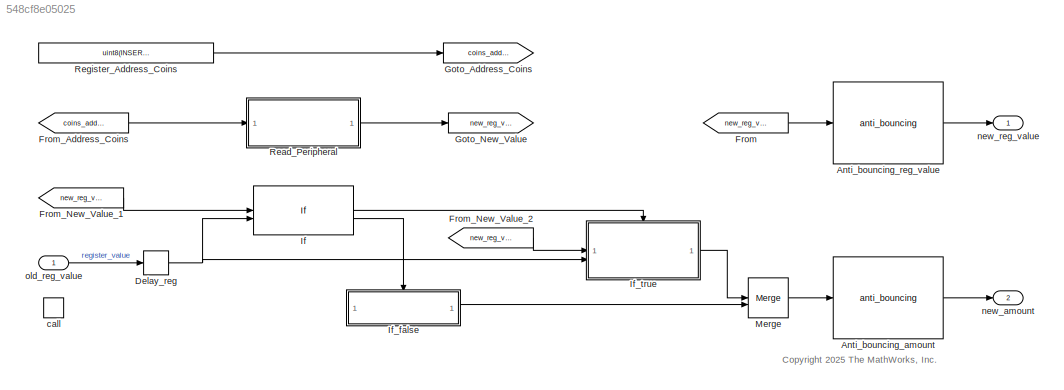
MODEL slx_548cf8e05025
KIND model
CONFIG AbsTol = auto
CONFIG EnableMultiTasking = off
CONFIG FixedStep = auto
CONFIG MaxStep = auto
CONFIG MinStep = auto
CONFIG RelTol = 1e-3
CONFIG SampleTimeConstraint = STIndependent
CONFIG SolverName = FixedStepAuto
CONFIG StartTime = 0.0
CONFIG StopTime = Inf
BLOCK [Reference] Anti_bouncing_amount  REF=Components/anti_bouncing
  SourceBlock = Components/anti_bouncing
  SourceType = SubSystem
BLOCK [Reference] Anti_bouncing_reg_value  REF=Components/anti_bouncing
  SourceBlock = Components/anti_bouncing
  SourceType = SubSystem
BLOCK [Delay] Delay_reg
  DelayLength = 1
  InitialCondition = 0
  InputPortMap = u0
BLOCK [From] From
  GotoTag = new_reg_value
BLOCK [From] From_Address_Coins
  GotoTag = coins_address
BLOCK [From] From_New_Value_1
  GotoTag = new_reg_value
  NameLocation = top
BLOCK [From] From_New_Value_2
  GotoTag = new_reg_value
  NameLocation = top
BLOCK [Goto] Goto_Address_Coins
  GotoTag = coins_address
BLOCK [Goto] Goto_New_Value
  GotoTag = new_reg_value
BLOCK [If] If
  IfExpression = u1 ~= u2
  NumInputs = 2
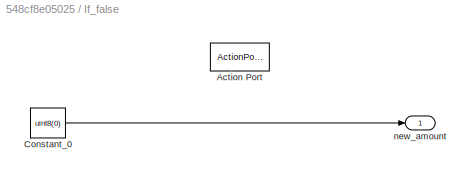
BLOCK [SubSystem] If_false
  TreatAsAtomicUnit = on
BLOCK [ActionPort] If_false/Action Port
  ActionPortLabel = else
BLOCK [Constant] If_false/Constant_0
  SampleTime = -1
  Value = uint8(0)
BLOCK [Outport] If_false/new_amount
  InitialOutput = 0
  VectorParamsAs1DForOutWhenUnconnected = off
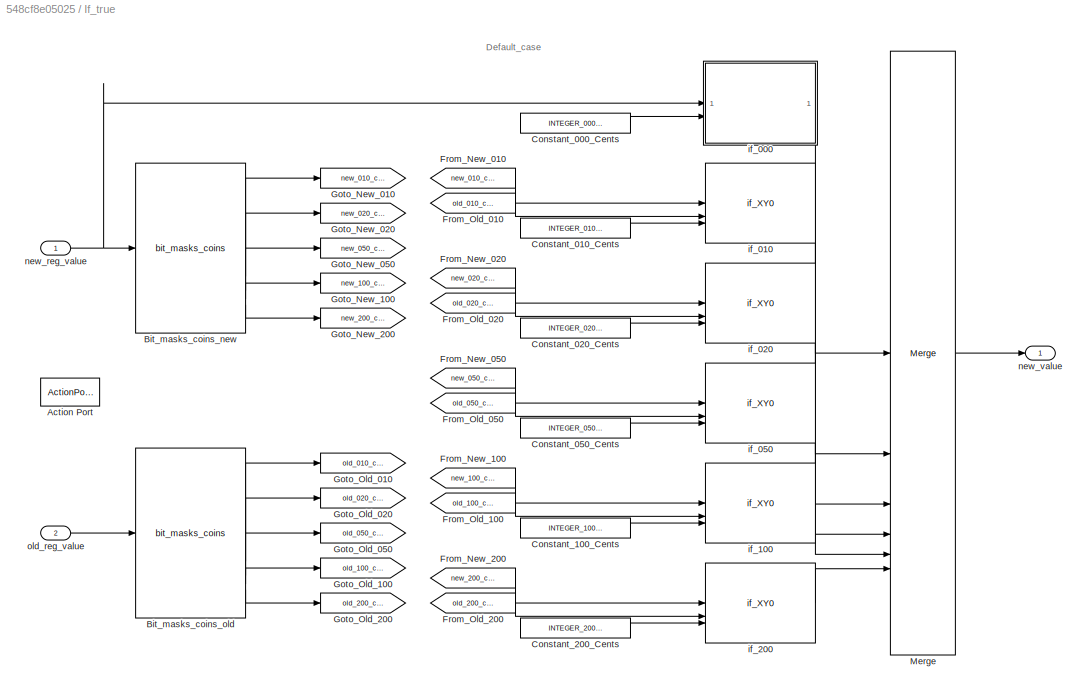
BLOCK [SubSystem] If_true
  TreatAsAtomicUnit = on
BLOCK [ActionPort] If_true/Action Port
  ActionPortLabel = if(u1 ~= u2)
BLOCK [Reference] If_true/Bit_masks_coins_new  REF=Components/bit_masks_coins
  SourceBlock = Components/bit_masks_coins
  SourceType = SubSystem
BLOCK [Reference] If_true/Bit_masks_coins_old  REF=Components/bit_masks_coins
  SourceBlock = Components/bit_masks_coins
  SourceType = SubSystem
BLOCK [Constant] If_true/Constant_000_Cents
  SampleTime = -1
  Value = INTEGER_000_CENTS
BLOCK [Constant] If_true/Constant_010_Cents
  SampleTime = -1
  Value = INTEGER_010_CENTS
BLOCK [Constant] If_true/Constant_020_Cents
  SampleTime = -1
  Value = INTEGER_020_CENTS
BLOCK [Constant] If_true/Constant_050_Cents
  SampleTime = -1
  Value = INTEGER_050_CENTS
BLOCK [Constant] If_true/Constant_100_Cents
  SampleTime = -1
  Value = INTEGER_100_CENTS
BLOCK [Constant] If_true/Constant_200_Cents
  SampleTime = -1
  Value = INTEGER_200_CENTS
BLOCK [From] If_true/From_New_010
  GotoTag = new_010_cents
  NameLocation = top
BLOCK [From] If_true/From_New_020
  GotoTag = new_020_cents
  NameLocation = top
BLOCK [From] If_true/From_New_050
  GotoTag = new_050_cents
  NameLocation = top
BLOCK [From] If_true/From_New_100
  GotoTag = new_100_cents
  NameLocation = top
BLOCK [From] If_true/From_New_200
  GotoTag = new_200_cents
  NameLocation = top
BLOCK [From] If_true/From_Old_010
  GotoTag = old_010_cents
BLOCK [From] If_true/From_Old_020
  GotoTag = old_020_cents
BLOCK [From] If_true/From_Old_050
  GotoTag = old_050_cents
BLOCK [From] If_true/From_Old_100
  GotoTag = old_100_cents
BLOCK [From] If_true/From_Old_200
  GotoTag = old_200_cents
BLOCK [Goto] If_true/Goto_New_010
  GotoTag = new_010_cents
BLOCK [Goto] If_true/Goto_New_020
  GotoTag = new_020_cents
BLOCK [Goto] If_true/Goto_New_050
  GotoTag = new_050_cents
BLOCK [Goto] If_true/Goto_New_100
  GotoTag = new_100_cents
BLOCK [Goto] If_true/Goto_New_200
  GotoTag = new_200_cents
BLOCK [Goto] If_true/Goto_Old_010
  GotoTag = old_010_cents
BLOCK [Goto] If_true/Goto_Old_020
  GotoTag = old_020_cents
BLOCK [Goto] If_true/Goto_Old_050
  GotoTag = old_050_cents
BLOCK [Goto] If_true/Goto_Old_100
  GotoTag = old_100_cents
BLOCK [Goto] If_true/Goto_Old_200
  GotoTag = old_200_cents
BLOCK [Merge] If_true/Merge
  Inputs = 6
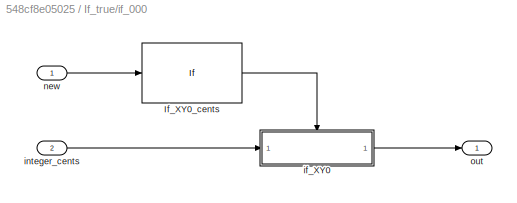
BLOCK [SubSystem] If_true/if_000
BLOCK [If] If_true/if_000/If_XY0_cents
  IfExpression = (u1 == 0)
  ShowElse = off
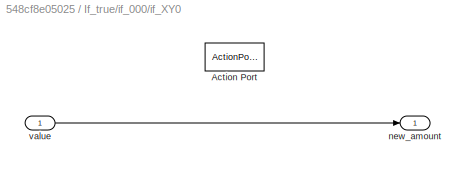
BLOCK [SubSystem] If_true/if_000/if_XY0
  TreatAsAtomicUnit = on
BLOCK [ActionPort] If_true/if_000/if_XY0/Action Port
  ActionPortLabel = if((u1 == 0))
BLOCK [Outport] If_true/if_000/if_XY0/new_amount
  VectorParamsAs1DForOutWhenUnconnected = off
BLOCK [Inport] If_true/if_000/if_XY0/value
BLOCK [Inport] If_true/if_000/integer_cents
  Port = 2
BLOCK [Inport] If_true/if_000/new
BLOCK [Outport] If_true/if_000/out
  VectorParamsAs1DForOutWhenUnconnected = off
BLOCK [Reference] If_true/if_010  REF=Components/if_XY0
  SourceBlock = Components/if_XY0
  SourceType = SubSystem
BLOCK [Reference] If_true/if_020  REF=Components/if_XY0
  SourceBlock = Components/if_XY0
  SourceType = SubSystem
BLOCK [Reference] If_true/if_050  REF=Components/if_XY0
  SourceBlock = Components/if_XY0
  SourceType = SubSystem
BLOCK [Reference] If_true/if_100  REF=Components/if_XY0
  SourceBlock = Components/if_XY0
  SourceType = SubSystem
BLOCK [Reference] If_true/if_200  REF=Components/if_XY0
  SourceBlock = Components/if_XY0
  SourceType = SubSystem
BLOCK [Inport] If_true/new_reg_value
BLOCK [Outport] If_true/new_value
  VectorParamsAs1DForOutWhenUnconnected = off
BLOCK [Inport] If_true/old_reg_value
  Port = 2
BLOCK [Merge] Merge
BLOCK [ModelReference] Read_Peripheral
  ModelNameDialog = ReadRegister
  ModelReferenceVersion = 11.4
BLOCK [Constant] Register_Address_Coins
  SampleTime = -1
  Value = uint8(INSERTED_COINS_REGISTER)
BLOCK [TriggerPort] call
  PortDimensions = 1
  StatesWhenEnabling = held
  TriggerSignalSampleTime = [0.001,0]
  TriggerType = function-call
  VariantControl = Variant
BLOCK [Outport] new_amount
  OutDataTypeStr = uint8
  Port = 2
  PortDimensions = 1
  SamplingMode = Sample based
  SignalType = real
  VectorParamsAs1DForOutWhenUnconnected = off
BLOCK [Outport] new_reg_value
  OutDataTypeStr = uint8
  PortDimensions = 1
  SamplingMode = Sample based
  SignalType = real
  VectorParamsAs1DForOutWhenUnconnected = off
BLOCK [Inport] old_reg_value
  OutDataTypeStr = uint8
  PortDimensions = 1
  SamplingMode = Sample based
  SignalType = real
ANNOTATION (root): <copyright redacted>
ANNOTATION If_true: Default_case
LINE Anti_bouncing_amount:1 -> new_amount:1
LINE Anti_bouncing_reg_value:1 -> new_reg_value:1
NET Delay_reg:1 -> If:2, If_true:2
LINE From:1 -> Anti_bouncing_reg_value:1
LINE From_Address_Coins:1 -> Read_Peripheral:1
LINE From_New_Value_1:1 -> If:1
LINE From_New_Value_2:1 -> If_true:1
LINE If:1 -> If_true:ifaction
LINE If:2 -> If_false:ifaction
LINE If_false/Constant_0:1 -> If_false/new_amount:1
LINE If_false:1 -> Merge:2
LINE If_true/Bit_masks_coins_new:1 -> If_true/Goto_New_010:1
LINE If_true/Bit_masks_coins_new:2 -> If_true/Goto_New_020:1
LINE If_true/Bit_masks_coins_new:3 -> If_true/Goto_New_050:1
LINE If_true/Bit_masks_coins_new:4 -> If_true/Goto_New_100:1
LINE If_true/Bit_masks_coins_new:5 -> If_true/Goto_New_200:1
LINE If_true/Bit_masks_coins_old:1 -> If_true/Goto_Old_010:1
LINE If_true/Bit_masks_coins_old:2 -> If_true/Goto_Old_020:1
LINE If_true/Bit_masks_coins_old:3 -> If_true/Goto_Old_050:1
LINE If_true/Bit_masks_coins_old:4 -> If_true/Goto_Old_100:1
LINE If_true/Bit_masks_coins_old:5 -> If_true/Goto_Old_200:1
LINE If_true/Constant_000_Cents:1 -> If_true/if_000:2
LINE If_true/Constant_010_Cents:1 -> If_true/if_010:3
LINE If_true/Constant_020_Cents:1 -> If_true/if_020:3
LINE If_true/Constant_050_Cents:1 -> If_true/if_050:3
LINE If_true/Constant_100_Cents:1 -> If_true/if_100:3
LINE If_true/Constant_200_Cents:1 -> If_true/if_200:3
LINE If_true/From_New_010:1 -> If_true/if_010:1
LINE If_true/From_New_020:1 -> If_true/if_020:1
LINE If_true/From_New_050:1 -> If_true/if_050:1
LINE If_true/From_New_100:1 -> If_true/if_100:1
LINE If_true/From_New_200:1 -> If_true/if_200:1
LINE If_true/From_Old_010:1 -> If_true/if_010:2
LINE If_true/From_Old_020:1 -> If_true/if_020:2
LINE If_true/From_Old_050:1 -> If_true/if_050:2
LINE If_true/From_Old_100:1 -> If_true/if_100:2
LINE If_true/From_Old_200:1 -> If_true/if_200:2
LINE If_true/Merge:1 -> If_true/new_value:1
LINE If_true/if_000/If_XY0_cents:1 -> If_true/if_000/if_XY0:ifaction
LINE If_true/if_000/if_XY0/value:1 -> If_true/if_000/if_XY0/new_amount:1
LINE If_true/if_000/if_XY0:1 -> If_true/if_000/out:1
LINE If_true/if_000/integer_cents:1 -> If_true/if_000/if_XY0:1
LINE If_true/if_000/new:1 -> If_true/if_000/If_XY0_cents:1
LINE If_true/if_000:1 -> If_true/Merge:1
LINE If_true/if_010:1 -> If_true/Merge:2
LINE If_true/if_020:1 -> If_true/Merge:3
LINE If_true/if_050:1 -> If_true/Merge:4
LINE If_true/if_100:1 -> If_true/Merge:5
LINE If_true/if_200:1 -> If_true/Merge:6
NET If_true/new_reg_value:1 -> If_true/Bit_masks_coins_new:1, If_true/if_000:1
LINE If_true/old_reg_value:1 -> If_true/Bit_masks_coins_old:1
LINE If_true:1 -> Merge:1
LINE Merge:1 -> Anti_bouncing_amount:1
LINE Read_Peripheral:1 -> Goto_New_Value:1
LINE Register_Address_Coins:1 -> Goto_Address_Coins:1
LINE old_reg_value:1 -> Delay_reg:1
note: NET lines group one-source signal fan-out (src -> all destinations, sorted); 1:1 wires keep LINE
